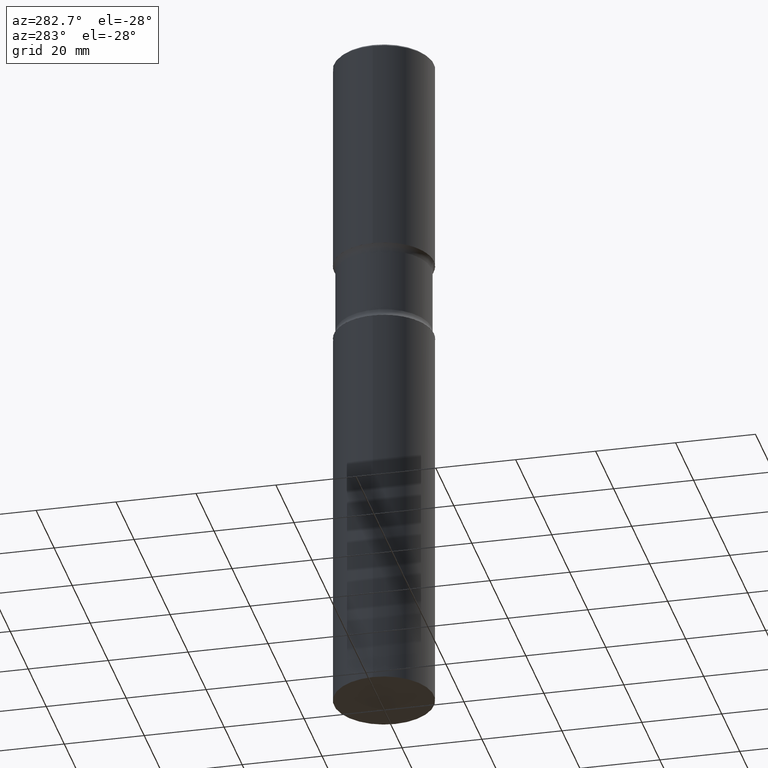
[diagram: clean part render]
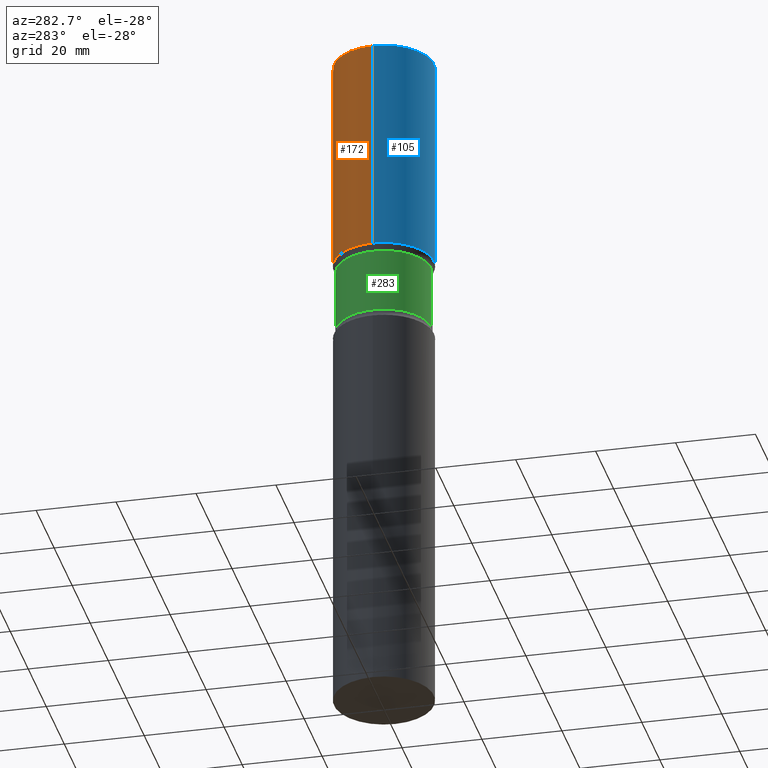
[diagram: same view with three faces highlighted in distinct colors, each labeled with its STEP entity id]
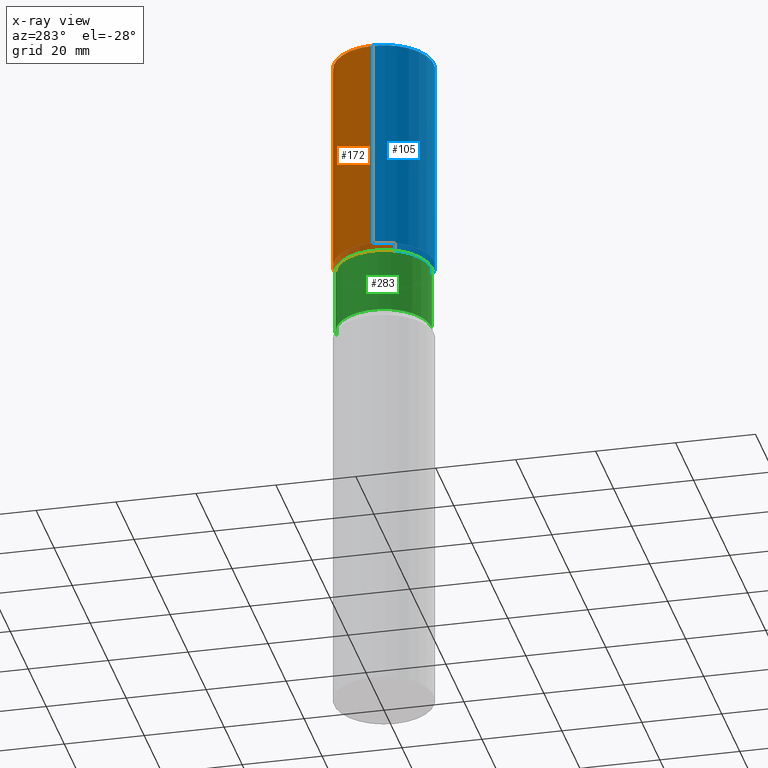
[diagram: x-ray of the same camera — body ghosted, the three highlighted faces saturated]
A machine part, auxiliary view with three faces highlighted in distinct colors.
The next image is the same camera in x-ray (body ghosted, the three faces saturated) — at least one of them is partly hidden behind the body in this view.
Their STEP definitions:

[orange] entity #172 — the highlighted cylindrical surface (partial cylindrical patch) has radius 12.5006 mm, axis along (-0, 0, 1).
#4 = ORIENTED_EDGE ( 'NONE', *, *, #462, .F. ) ;
#7 = EDGE_CURVE ( 'NONE', #229, #498, #294, .T. ) ;
#12 = EDGE_LOOP ( 'NONE', ( #258, #406, #135, #4 ) ) ;
#36 = CARTESIAN_POINT ( 'NONE',  ( 0.4921499999999997543, -3.446223716380121166E-15, -0.02000000000000010797 ) ) ;
#97 = CARTESIAN_POINT ( 'NONE',  ( -0.4921499999999998098, 3.496936074043331714E-15, -2.420853904668950949E-29 ) ) ;
#98 = VECTOR ( 'NONE', #476, 39.37007874015748143 ) ;
#111 = FACE_OUTER_BOUND ( 'NONE', #12, .T. ) ;
#116 = VECTOR ( 'NONE', #410, 39.37007874015748143 ) ;
#117 = CIRCLE ( 'NONE', #454, 0.4921499999999997543 ) ;
#120 = DIRECTION ( 'NONE',  ( 1.000000000000000000, -6.982962677686265922E-15, 0.000000000000000000 ) ) ;
#135 = ORIENTED_EDGE ( 'NONE', *, *, #289, .F. ) ;
#144 = DIRECTION ( 'NONE',  ( 1.000000000000000000, -6.982962677686265922E-15, 4.876176775795935793E-29 ) ) ;
#165 = CARTESIAN_POINT ( 'NONE',  ( 4.890937612370299433E-31, -6.982962677686328587E-17, -0.02000000000000010797 ) ) ;
#172 = ADVANCED_FACE ( 'NONE', ( #111 ), #490, .T. ) ;
#175 = CARTESIAN_POINT ( 'NONE',  ( 0.4921499999999998098, -3.436665081823294593E-15, 2.399810400207968762E-29 ) ) ;
#184 = AXIS2_PLACEMENT_3D ( 'NONE', #270, #276, #120 ) ;
#191 = DIRECTION ( 'NONE',  ( -2.445468806185136597E-29, 3.491481338843145583E-15, 1.000000000000000000 ) ) ;
#199 = VERTEX_POINT ( 'NONE', #36 ) ;
#227 = CARTESIAN_POINT ( 'NONE',  ( 0.000000000000000000, 0.000000000000000000, 0.000000000000000000 ) ) ;
#229 = VERTEX_POINT ( 'NONE', #426 ) ;
#258 = ORIENTED_EDGE ( 'NONE', *, *, #321, .T. ) ;
#263 = AXIS2_PLACEMENT_3D ( 'NONE', #227, #191, #144 ) ;
#270 = CARTESIAN_POINT ( 'NONE',  ( 5.295418152913293224E-29, -7.560453691130944267E-15, -2.165399999999999103 ) ) ;
#273 = CIRCLE ( 'NONE', #184, 0.4921499999999999764 ) ;
#275 = DIRECTION ( 'NONE',  ( -2.445468806185136597E-29, 3.491481338843145583E-15, 1.000000000000000000 ) ) ;
#276 = DIRECTION ( 'NONE',  ( -2.445468806185136597E-29, 3.491481338843145583E-15, 1.000000000000000000 ) ) ;
#281 = DIRECTION ( 'NONE',  ( 1.000000000000000000, -6.982962677686265922E-15, 0.000000000000000000 ) ) ;
#289 = EDGE_CURVE ( 'NONE', #199, #498, #117, .T. ) ;
#293 = LINE ( 'NONE', #175, #98 ) ;
#294 = LINE ( 'NONE', #97, #116 ) ;
#321 = EDGE_CURVE ( 'NONE', #333, #229, #273, .T. ) ;
#333 = VERTEX_POINT ( 'NONE', #428 ) ;
#402 = CARTESIAN_POINT ( 'NONE',  ( -0.4921499999999997543, 3.366835455046430901E-15, -0.02000000000000010797 ) ) ;
#406 = ORIENTED_EDGE ( 'NONE', *, *, #7, .T. ) ;
#410 = DIRECTION ( 'NONE',  ( -2.445468806185136877E-29, 3.491481338843145188E-15, 1.000000000000000000 ) ) ;
#426 = CARTESIAN_POINT ( 'NONE',  ( -0.4921499999999999764, -3.182055849105702942E-16, -2.165399999999999103 ) ) ;
#428 = CARTESIAN_POINT ( 'NONE',  ( 0.4921499999999999764, -1.099711877295424004E-14, -2.165399999999999103 ) ) ;
#454 = AXIS2_PLACEMENT_3D ( 'NONE', #165, #275, #281 ) ;
#462 = EDGE_CURVE ( 'NONE', #333, #199, #293, .T. ) ;
#476 = DIRECTION ( 'NONE',  ( -2.445468806185136877E-29, 3.491481338843145188E-15, 1.000000000000000000 ) ) ;
#490 = CYLINDRICAL_SURFACE ( 'NONE', #263, 0.4921499999999998098 ) ;
#498 = VERTEX_POINT ( 'NONE', #402 ) ;

[blue] entity #105 — the highlighted cylindrical surface (partial cylindrical patch) has radius 12.5006 mm, axis along (-0, 0, 1).
#7 = EDGE_CURVE ( 'NONE', #229, #498, #294, .T. ) ;
#26 = FACE_OUTER_BOUND ( 'NONE', #280, .T. ) ;
#29 = DIRECTION ( 'NONE',  ( -2.445468806185136597E-29, 3.491481338843145583E-15, 1.000000000000000000 ) ) ;
#34 = DIRECTION ( 'NONE',  ( -2.445468806185136597E-29, 3.491481338843145583E-15, 1.000000000000000000 ) ) ;
#36 = CARTESIAN_POINT ( 'NONE',  ( 0.4921499999999997543, -3.446223716380121166E-15, -0.02000000000000010797 ) ) ;
#51 = ORIENTED_EDGE ( 'NONE', *, *, #462, .T. ) ;
#75 = CIRCLE ( 'NONE', #174, 0.4921499999999999764 ) ;
#97 = CARTESIAN_POINT ( 'NONE',  ( -0.4921499999999998098, 3.496936074043331714E-15, -2.420853904668950949E-29 ) ) ;
#98 = VECTOR ( 'NONE', #476, 39.37007874015748143 ) ;
#101 = EDGE_CURVE ( 'NONE', #498, #199, #447, .T. ) ;
#103 = DIRECTION ( 'NONE',  ( -2.445468806185136597E-29, 3.491481338843145583E-15, 1.000000000000000000 ) ) ;
#105 = ADVANCED_FACE ( 'NONE', ( #26 ), #453, .T. ) ;
#113 = CARTESIAN_POINT ( 'NONE',  ( 4.890937612370299433E-31, -6.982962677686328587E-17, -0.02000000000000010797 ) ) ;
#116 = VECTOR ( 'NONE', #410, 39.37007874015748143 ) ;
#149 = DIRECTION ( 'NONE',  ( 1.000000000000000000, -6.982962677686265922E-15, 4.876176775795935793E-29 ) ) ;
#160 = EDGE_CURVE ( 'NONE', #229, #333, #75, .T. ) ;
#174 = AXIS2_PLACEMENT_3D ( 'NONE', #344, #34, #298 ) ;
#175 = CARTESIAN_POINT ( 'NONE',  ( 0.4921499999999998098, -3.436665081823294593E-15, 2.399810400207968762E-29 ) ) ;
#199 = VERTEX_POINT ( 'NONE', #36 ) ;
#221 = DIRECTION ( 'NONE',  ( 1.000000000000000000, -6.982962677686265922E-15, 0.000000000000000000 ) ) ;
#229 = VERTEX_POINT ( 'NONE', #426 ) ;
#266 = ORIENTED_EDGE ( 'NONE', *, *, #7, .F. ) ;
#280 = EDGE_LOOP ( 'NONE', ( #266, #427, #51, #421 ) ) ;
#293 = LINE ( 'NONE', #175, #98 ) ;
#294 = LINE ( 'NONE', #97, #116 ) ;
#298 = DIRECTION ( 'NONE',  ( 1.000000000000000000, -6.982962677686265922E-15, 0.000000000000000000 ) ) ;
#333 = VERTEX_POINT ( 'NONE', #428 ) ;
#344 = CARTESIAN_POINT ( 'NONE',  ( 5.295418152913293224E-29, -7.560453691130944267E-15, -2.165399999999999103 ) ) ;
#371 = CARTESIAN_POINT ( 'NONE',  ( 0.000000000000000000, 0.000000000000000000, 0.000000000000000000 ) ) ;
#402 = CARTESIAN_POINT ( 'NONE',  ( -0.4921499999999997543, 3.366835455046430901E-15, -0.02000000000000010797 ) ) ;
#410 = DIRECTION ( 'NONE',  ( -2.445468806185136877E-29, 3.491481338843145188E-15, 1.000000000000000000 ) ) ;
#421 = ORIENTED_EDGE ( 'NONE', *, *, #101, .F. ) ;
#426 = CARTESIAN_POINT ( 'NONE',  ( -0.4921499999999999764, -3.182055849105702942E-16, -2.165399999999999103 ) ) ;
#427 = ORIENTED_EDGE ( 'NONE', *, *, #160, .T. ) ;
#428 = CARTESIAN_POINT ( 'NONE',  ( 0.4921499999999999764, -1.099711877295424004E-14, -2.165399999999999103 ) ) ;
#431 = AXIS2_PLACEMENT_3D ( 'NONE', #113, #29, #221 ) ;
#447 = CIRCLE ( 'NONE', #431, 0.4921499999999997543 ) ;
#453 = CYLINDRICAL_SURFACE ( 'NONE', #479, 0.4921499999999998098 ) ;
#462 = EDGE_CURVE ( 'NONE', #333, #199, #293, .T. ) ;
#476 = DIRECTION ( 'NONE',  ( -2.445468806185136877E-29, 3.491481338843145188E-15, 1.000000000000000000 ) ) ;
#479 = AXIS2_PLACEMENT_3D ( 'NONE', #371, #103, #149 ) ;
#498 = VERTEX_POINT ( 'NONE', #402 ) ;

[green] entity #283 — the highlighted cylindrical surface (partial cylindrical patch) has radius 11.8745 mm, axis along (0, -0, -1).
#3 = DIRECTION ( 'NONE',  ( 2.481809406732894494E-29, -3.439439530480224815E-15, -1.000000000000000000 ) ) ;
#5 = CIRCLE ( 'NONE', #156, 0.4674999999999999156 ) ;
#10 = ORIENTED_EDGE ( 'NONE', *, *, #401, .F. ) ;
#41 = CARTESIAN_POINT ( 'NONE',  ( 3.264535051818400211E-15, 0.4674999999999900346, -2.878268949423748779 ) ) ;
#49 = VECTOR ( 'NONE', #252, 39.37007874015748143 ) ;
#59 = LINE ( 'NONE', #267, #139 ) ;
#74 = DIRECTION ( 'NONE',  ( 2.481809406732894494E-29, -3.439439530480224815E-15, -1.000000000000000000 ) ) ;
#78 = ORIENTED_EDGE ( 'NONE', *, *, #497, .T. ) ;
#80 = EDGE_CURVE ( 'NONE', #386, #148, #59, .T. ) ;
#92 = ORIENTED_EDGE ( 'NONE', *, *, #80, .F. ) ;
#99 = EDGE_LOOP ( 'NONE', ( #92, #126, #78, #10 ) ) ;
#126 = ORIENTED_EDGE ( 'NONE', *, *, #202, .T. ) ;
#139 = VECTOR ( 'NONE', #496, 39.37007874015748143 ) ;
#148 = VERTEX_POINT ( 'NONE', #380 ) ;
#151 = DIRECTION ( 'NONE',  ( 6.982962677686266711E-15, 1.000000000000000000, -3.506115072082477581E-15 ) ) ;
#156 = AXIS2_PLACEMENT_3D ( 'NONE', #507, #74, #151 ) ;
#202 = EDGE_CURVE ( 'NONE', #386, #247, #5, .T. ) ;
#247 = VERTEX_POINT ( 'NONE', #381 ) ;
#252 = DIRECTION ( 'NONE',  ( 2.481809406732894774E-29, -3.439439530480224815E-15, -1.000000000000000000 ) ) ;
#259 = VERTEX_POINT ( 'NONE', #41 ) ;
#264 = CIRCLE ( 'NONE', #465, 0.4675000000000000822 ) ;
#267 = CARTESIAN_POINT ( 'NONE',  ( -3.207282813958021053E-15, -0.4675000000000238409, -6.889799999999998370 ) ) ;
#283 = ADVANCED_FACE ( 'NONE', ( #387 ), #471, .T. ) ;
#328 = CARTESIAN_POINT ( 'NONE',  ( 3.264535051818499213E-15, 0.4674999999999761569, -6.889800000000000146 ) ) ;
#332 = DIRECTION ( 'NONE',  ( 6.982962677686265922E-15, 1.000000000000000000, -3.506115072082476398E-15 ) ) ;
#350 = DIRECTION ( 'NONE',  ( 6.982962677686265922E-15, 1.000000000000000000, -2.337410048054984397E-15 ) ) ;
#356 = CARTESIAN_POINT ( 'NONE',  ( 1.699186392521087599E-28, -2.385071952883668146E-14, -6.889799999999999258 ) ) ;
#366 = CARTESIAN_POINT ( 'NONE',  ( 7.036008428489641815E-29, -1.005330105573585586E-14, -2.878268949423747003 ) ) ;
#379 = AXIS2_PLACEMENT_3D ( 'NONE', #356, #3, #350 ) ;
#380 = CARTESIAN_POINT ( 'NONE',  ( -3.291838451780652477E-15, -0.4675000000000101297, -2.878268949423745227 ) ) ;
#381 = CARTESIAN_POINT ( 'NONE',  ( 3.264535051818383251E-15, 0.4674999999999920886, -2.239931050576253746 ) ) ;
#386 = VERTEX_POINT ( 'NONE', #399 ) ;
#387 = FACE_OUTER_BOUND ( 'NONE', #99, .T. ) ;
#399 = CARTESIAN_POINT ( 'NONE',  ( -3.291838451780671409E-15, -0.4675000000000077982, -2.239931050576250193 ) ) ;
#401 = EDGE_CURVE ( 'NONE', #148, #259, #264, .T. ) ;
#437 = LINE ( 'NONE', #328, #49 ) ;
#439 = DIRECTION ( 'NONE',  ( 2.481809406732894494E-29, -3.439439530480224815E-15, -1.000000000000000000 ) ) ;
#465 = AXIS2_PLACEMENT_3D ( 'NONE', #366, #439, #332 ) ;
#471 = CYLINDRICAL_SURFACE ( 'NONE', #379, 0.4675000000000000266 ) ;
#496 = DIRECTION ( 'NONE',  ( 2.481809406732894774E-29, -3.439439530480224815E-15, -1.000000000000000000 ) ) ;
#497 = EDGE_CURVE ( 'NONE', #247, #259, #437, .T. ) ;
#507 = CARTESIAN_POINT ( 'NONE',  ( 5.451775426455818062E-29, -7.857776452636094191E-15, -2.239931050576251970 ) ) ;